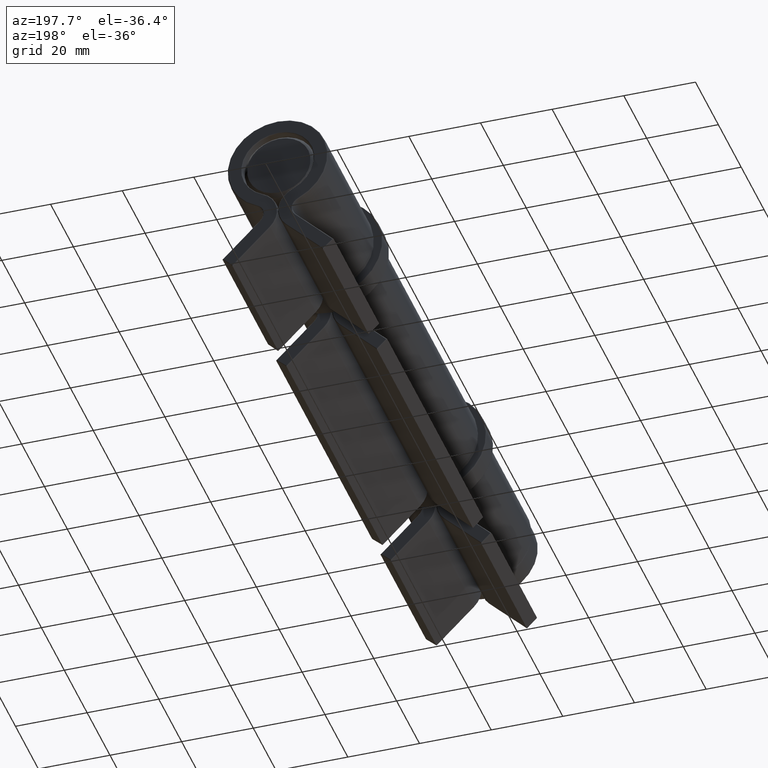
[diagram: clean part render]
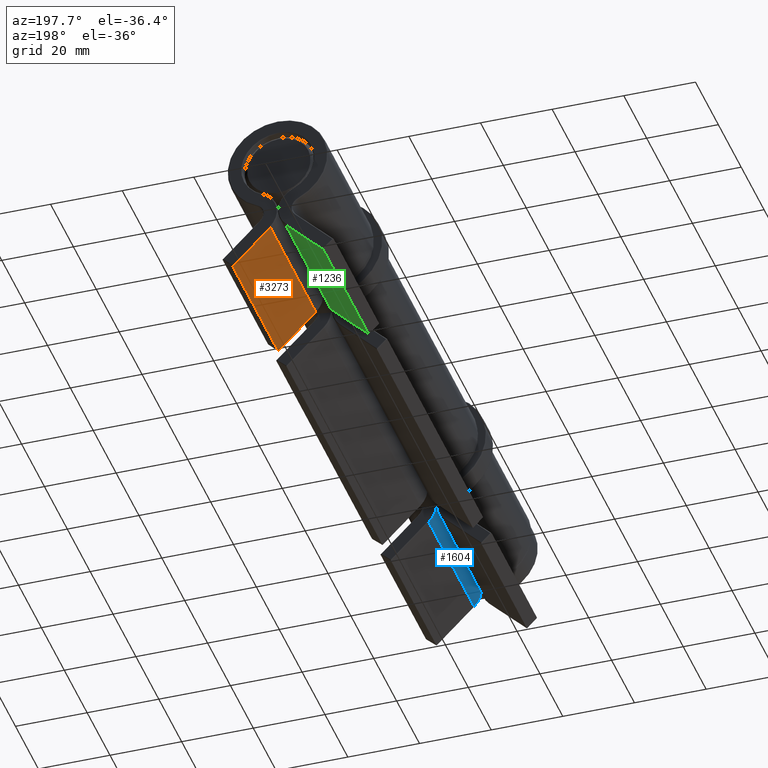
[diagram: same view with three faces highlighted in distinct colors, each labeled with its STEP entity id]
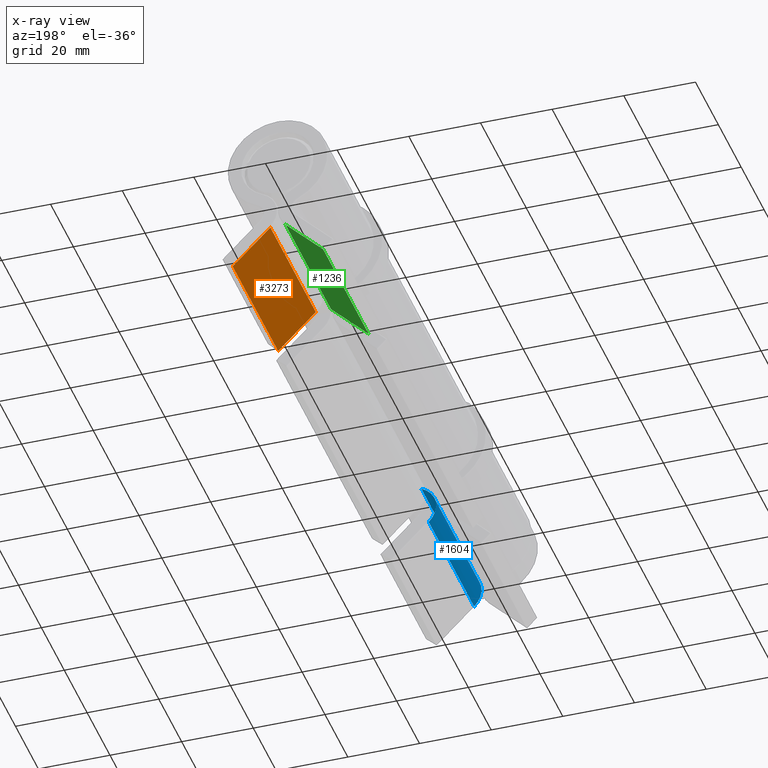
[diagram: x-ray of the same camera — body ghosted, the three highlighted faces saturated]
A machine part, auxiliary view with three faces highlighted in distinct colors.
The next image is the same camera in x-ray (body ghosted, the three faces saturated) — at least one of them is partly hidden behind the body in this view.
Their STEP definitions:

[orange] entity #3273 — the highlighted planar face has unit normal (0.7071, 0, 0.7071).
#151 = VECTOR ( 'NONE', #2356, 1000.000000000000000 ) ;
#198 = EDGE_CURVE ( 'NONE', #302, #3826, #1874, .T. ) ;
#274 = CARTESIAN_POINT ( 'NONE',  ( 2.118558555108517538, 39.75000000000001421, -7.775412804600900785 ) ) ;
#302 = VERTEX_POINT ( 'NONE', #274 ) ;
#476 = CARTESIAN_POINT ( 'NONE',  ( 12.61522368914980419, 40.00000000000001421, -18.27207793864211283 ) ) ;
#505 = DIRECTION ( 'NONE',  ( 0.7071067811865501263, -0.000000000000000000, -0.7071067811865450192 ) ) ;
#513 = VECTOR ( 'NONE', #505, 1000.000000000000114 ) ;
#731 = EDGE_CURVE ( 'NONE', #2338, #3826, #2969, .T. ) ;
#848 = LINE ( 'NONE', #3733, #513 ) ;
#947 = ORIENTED_EDGE ( 'NONE', *, *, #731, .T. ) ;
#1099 = ORIENTED_EDGE ( 'NONE', *, *, #3871, .T. ) ;
#1141 = VERTEX_POINT ( 'NONE', #1426 ) ;
#1142 = AXIS2_PLACEMENT_3D ( 'NONE', #476, #3668, #2581 ) ;
#1148 = LINE ( 'NONE', #2153, #3530 ) ;
#1212 = DIRECTION ( 'NONE',  ( -0.7071067811865501263, 0.000000000000000000, 0.7071067811865450192 ) ) ;
#1426 = CARTESIAN_POINT ( 'NONE',  ( 12.61522368914980419, 39.75000000000001421, -18.27207793864211283 ) ) ;
#1440 = CARTESIAN_POINT ( 'NONE',  ( 2.118558555108517538, 0.000000000000000000, -7.775412804600900785 ) ) ;
#1673 = CARTESIAN_POINT ( 'NONE',  ( 2.118558555108517538, 40.00000000000001421, -7.775412804600900785 ) ) ;
#1874 = LINE ( 'NONE', #1673, #151 ) ;
#2153 = CARTESIAN_POINT ( 'NONE',  ( 12.61522368914980419, 40.00000000000001421, -18.27207793864211283 ) ) ;
#2338 = VERTEX_POINT ( 'NONE', #2458 ) ;
#2356 = DIRECTION ( 'NONE',  ( -0.000000000000000000, -1.000000000000000000, -0.000000000000000000 ) ) ;
#2458 = CARTESIAN_POINT ( 'NONE',  ( 12.61522368914980419, 0.000000000000000000, -18.27207793864211283 ) ) ;
#2581 = DIRECTION ( 'NONE',  ( 0.7071067811865501263, 0.000000000000000000, -0.7071067811865450192 ) ) ;
#2867 = ORIENTED_EDGE ( 'NONE', *, *, #3398, .T. ) ;
#2969 = LINE ( 'NONE', #2983, #3021 ) ;
#2983 = CARTESIAN_POINT ( 'NONE',  ( 12.61522368914980419, 0.000000000000000000, -18.27207793864211283 ) ) ;
#3021 = VECTOR ( 'NONE', #1212, 1000.000000000000114 ) ;
#3273 = ADVANCED_FACE ( 'NONE', ( #3565 ), #4323, .F. ) ;
#3398 = EDGE_CURVE ( 'NONE', #302, #1141, #848, .T. ) ;
#3530 = VECTOR ( 'NONE', #3564, 1000.000000000000000 ) ;
#3564 = DIRECTION ( 'NONE',  ( -0.000000000000000000, -1.000000000000000000, -0.000000000000000000 ) ) ;
#3565 = FACE_OUTER_BOUND ( 'NONE', #4056, .T. ) ;
#3668 = DIRECTION ( 'NONE',  ( 0.7071067811865450192, -0.000000000000000000, 0.7071067811865501263 ) ) ;
#3733 = CARTESIAN_POINT ( 'NONE',  ( 12.61522368914980419, 39.75000000000001421, -18.27207793864211283 ) ) ;
#3826 = VERTEX_POINT ( 'NONE', #1440 ) ;
#3871 = EDGE_CURVE ( 'NONE', #1141, #2338, #1148, .T. ) ;
#4056 = EDGE_LOOP ( 'NONE', ( #4340, #2867, #1099, #947 ) ) ;
#4323 = PLANE ( 'NONE',  #1142 ) ;
#4340 = ORIENTED_EDGE ( 'NONE', *, *, #198, .F. ) ;

[blue] entity #1604 — the highlighted cylindrical surface (edge-blend (fillet) strip) has radius 7.0625 mm, axis along (-0, -1, -0).
#8 = ORIENTED_EDGE ( 'NONE', *, *, #159, .T. ) ;
#81 = VECTOR ( 'NONE', #2903, 1000.000000000000000 ) ;
#94 = CIRCLE ( 'NONE', #4567, 7.062500673414382923 ) ;
#159 = EDGE_CURVE ( 'NONE', #1742, #3343, #94, .T. ) ;
#348 = CARTESIAN_POINT ( 'NONE',  ( 7.112500673414377417, 40.00000000000000711, -2.781470686294983619 ) ) ;
#373 = CYLINDRICAL_SURFACE ( 'NONE', #3964, 7.062500673414382923 ) ;
#470 = ORIENTED_EDGE ( 'NONE', *, *, #3171, .T. ) ;
#608 = CARTESIAN_POINT ( 'NONE',  ( 4.168498398653013304, 40.00000000000000711, 3.638168428809426036 ) ) ;
#637 = DIRECTION ( 'NONE',  ( -0.000000000000000000, -1.000000000000000000, -0.000000000000000000 ) ) ;
#675 = DIRECTION ( 'NONE',  ( -0.000000000000000000, -1.000000000000000000, -0.000000000000000000 ) ) ;
#862 = CARTESIAN_POINT ( 'NONE',  ( 4.168498398653013304, 0.000000000000000000, 3.638168428809426036 ) ) ;
#907 = EDGE_CURVE ( 'NONE', #2396, #3343, #2013, .T. ) ;
#931 = AXIS2_PLACEMENT_3D ( 'NONE', #3892, #4568, #1734 ) ;
#987 = FACE_OUTER_BOUND ( 'NONE', #2239, .T. ) ;
#1176 = VECTOR ( 'NONE', #637, 1000.000000000000000 ) ;
#1292 = DIRECTION ( 'NONE',  ( 0.000000000000000000, 0.000000000000000000, 1.000000000000000000 ) ) ;
#1376 = DIRECTION ( 'NONE',  ( 0.000000000000000000, 0.000000000000000000, -1.000000000000000000 ) ) ;
#1604 = ADVANCED_FACE ( 'NONE', ( #987 ), #373, .T. ) ;
#1723 = CARTESIAN_POINT ( 'NONE',  ( 2.118558555108524644, 0.000000000000000000, -7.775412804600862593 ) ) ;
#1734 = DIRECTION ( 'NONE',  ( 0.000000000000000000, 0.000000000000000000, 1.000000000000000000 ) ) ;
#1742 = VERTEX_POINT ( 'NONE', #1723 ) ;
#1791 = CARTESIAN_POINT ( 'NONE',  ( 4.168498398653013304, 39.75000000000000711, 3.638168428809426036 ) ) ;
#1807 = LINE ( 'NONE', #3960, #81 ) ;
#1884 = CARTESIAN_POINT ( 'NONE',  ( 2.118558555108524644, 39.75000000000000711, -7.775412804600862593 ) ) ;
#2003 = DIRECTION ( 'NONE',  ( 0.000000000000000000, 1.000000000000000000, 0.000000000000000000 ) ) ;
#2013 = LINE ( 'NONE', #608, #1176 ) ;
#2239 = EDGE_LOOP ( 'NONE', ( #4029, #3769, #470, #8 ) ) ;
#2396 = VERTEX_POINT ( 'NONE', #1791 ) ;
#2903 = DIRECTION ( 'NONE',  ( -0.000000000000000000, -1.000000000000000000, -0.000000000000000000 ) ) ;
#3094 = CARTESIAN_POINT ( 'NONE',  ( 7.112500673414377417, 0.000000000000000000, -2.781470686294983619 ) ) ;
#3171 = EDGE_CURVE ( 'NONE', #3284, #1742, #1807, .T. ) ;
#3284 = VERTEX_POINT ( 'NONE', #1884 ) ;
#3343 = VERTEX_POINT ( 'NONE', #862 ) ;
#3769 = ORIENTED_EDGE ( 'NONE', *, *, #4451, .T. ) ;
#3892 = CARTESIAN_POINT ( 'NONE',  ( 7.112500673414377417, 39.75000000000000711, -2.781470686294983619 ) ) ;
#3960 = CARTESIAN_POINT ( 'NONE',  ( 2.118558555108524644, 40.00000000000000711, -7.775412804600862593 ) ) ;
#3964 = AXIS2_PLACEMENT_3D ( 'NONE', #348, #675, #1376 ) ;
#4029 = ORIENTED_EDGE ( 'NONE', *, *, #907, .F. ) ;
#4393 = CIRCLE ( 'NONE', #931, 7.062500673414382923 ) ;
#4451 = EDGE_CURVE ( 'NONE', #2396, #3284, #4393, .T. ) ;
#4567 = AXIS2_PLACEMENT_3D ( 'NONE', #3094, #2003, #1292 ) ;
#4568 = DIRECTION ( 'NONE',  ( -0.000000000000000000, -1.000000000000000000, -0.000000000000000000 ) ) ;

[green] entity #1236 — the highlighted planar face has unit normal (-0.7071, 0, 0.7071).
#105 = VECTOR ( 'NONE', #4384, 1000.000000000000000 ) ;
#175 = CARTESIAN_POINT ( 'NONE',  ( -12.61522368914976688, 0.000000000000000000, -18.27207793864214835 ) ) ;
#486 = CARTESIAN_POINT ( 'NONE',  ( -12.61522368914976688, 39.75000000000001421, -18.27207793864214835 ) ) ;
#503 = AXIS2_PLACEMENT_3D ( 'NONE', #2578, #1283, #1933 ) ;
#654 = EDGE_CURVE ( 'NONE', #3696, #4558, #3311, .T. ) ;
#978 = EDGE_LOOP ( 'NONE', ( #3195, #1958, #1768, #3437 ) ) ;
#1236 = ADVANCED_FACE ( 'NONE', ( #1728 ), #4350, .F. ) ;
#1283 = DIRECTION ( 'NONE',  ( -0.7071067811865472397, 0.000000000000000000, 0.7071067811865479058 ) ) ;
#1387 = CARTESIAN_POINT ( 'NONE',  ( -2.118558555108514430, 39.75000000000001421, -7.775412804600900785 ) ) ;
#1728 = FACE_OUTER_BOUND ( 'NONE', #978, .T. ) ;
#1768 = ORIENTED_EDGE ( 'NONE', *, *, #3278, .T. ) ;
#1904 = VECTOR ( 'NONE', #4060, 1000.000000000000000 ) ;
#1933 = DIRECTION ( 'NONE',  ( 0.7071067811865479058, 0.000000000000000000, 0.7071067811865472397 ) ) ;
#1958 = ORIENTED_EDGE ( 'NONE', *, *, #2139, .T. ) ;
#2006 = DIRECTION ( 'NONE',  ( 0.7071067811865479058, -0.000000000000000000, 0.7071067811865472397 ) ) ;
#2139 = EDGE_CURVE ( 'NONE', #3966, #4477, #2776, .T. ) ;
#2210 = VECTOR ( 'NONE', #2006, 1000.000000000000000 ) ;
#2346 = VECTOR ( 'NONE', #3657, 1000.000000000000000 ) ;
#2533 = EDGE_CURVE ( 'NONE', #3966, #4558, #3908, .T. ) ;
#2578 = CARTESIAN_POINT ( 'NONE',  ( -12.61522368914976688, 40.00000000000001421, -18.27207793864214835 ) ) ;
#2776 = LINE ( 'NONE', #3132, #2210 ) ;
#2956 = LINE ( 'NONE', #3975, #105 ) ;
#3129 = CARTESIAN_POINT ( 'NONE',  ( -2.118558555108514430, 0.000000000000000000, -7.775412804600900785 ) ) ;
#3132 = CARTESIAN_POINT ( 'NONE',  ( -2.118558555108513097, 39.75000000000001421, -7.775412804600904337 ) ) ;
#3195 = ORIENTED_EDGE ( 'NONE', *, *, #2533, .F. ) ;
#3269 = CARTESIAN_POINT ( 'NONE',  ( -12.61522368914976688, 0.000000000000000000, -18.27207793864214835 ) ) ;
#3278 = EDGE_CURVE ( 'NONE', #4477, #3696, #2956, .T. ) ;
#3311 = LINE ( 'NONE', #175, #1904 ) ;
#3437 = ORIENTED_EDGE ( 'NONE', *, *, #654, .T. ) ;
#3657 = DIRECTION ( 'NONE',  ( -0.000000000000000000, -1.000000000000000000, -0.000000000000000000 ) ) ;
#3696 = VERTEX_POINT ( 'NONE', #3129 ) ;
#3908 = LINE ( 'NONE', #4015, #2346 ) ;
#3966 = VERTEX_POINT ( 'NONE', #486 ) ;
#3975 = CARTESIAN_POINT ( 'NONE',  ( -2.118558555108514430, 40.00000000000001421, -7.775412804600900785 ) ) ;
#4015 = CARTESIAN_POINT ( 'NONE',  ( -12.61522368914976688, 40.00000000000001421, -18.27207793864214835 ) ) ;
#4060 = DIRECTION ( 'NONE',  ( -0.7071067811865479058, -0.000000000000000000, -0.7071067811865472397 ) ) ;
#4350 = PLANE ( 'NONE',  #503 ) ;
#4384 = DIRECTION ( 'NONE',  ( -0.000000000000000000, -1.000000000000000000, -0.000000000000000000 ) ) ;
#4477 = VERTEX_POINT ( 'NONE', #1387 ) ;
#4558 = VERTEX_POINT ( 'NONE', #3269 ) ;